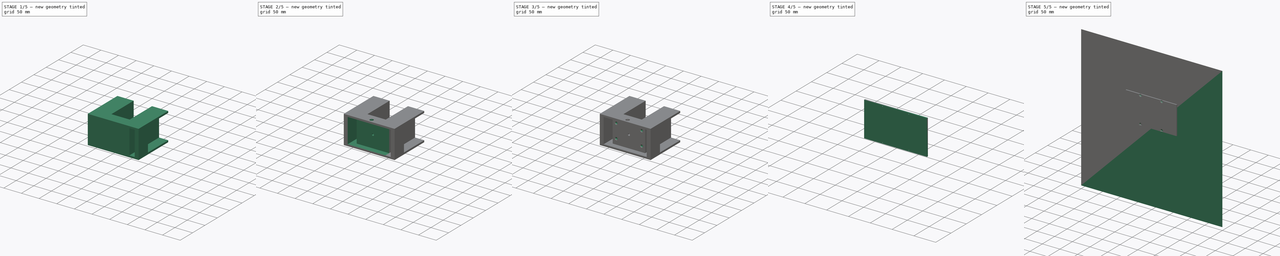
[diagram: build sequence overview — one tinted view per stage of 5, left to right]
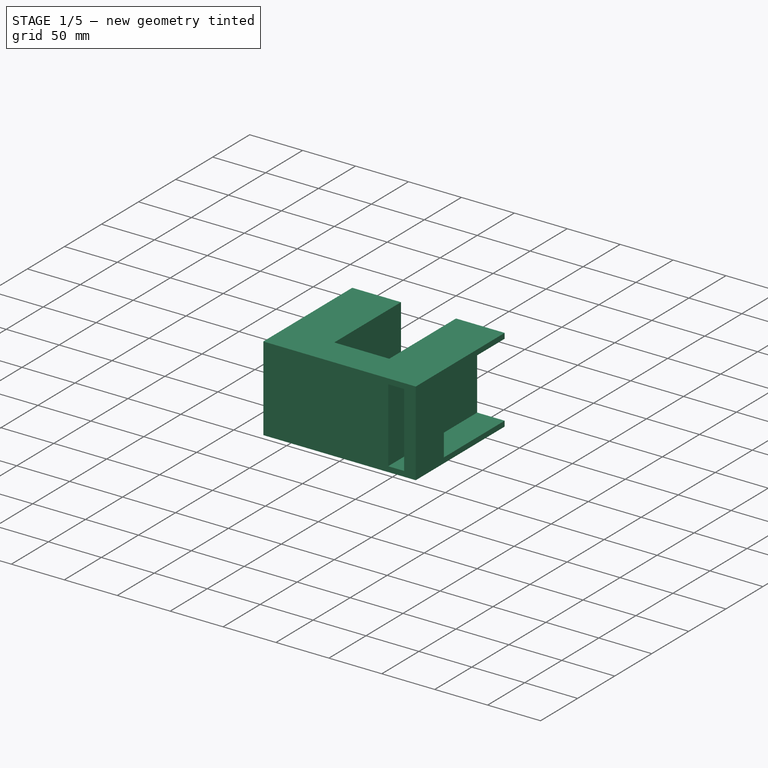
[diagram: stage 1 of 5 — iso view after this stage's code; geometry added in this stage tinted green]
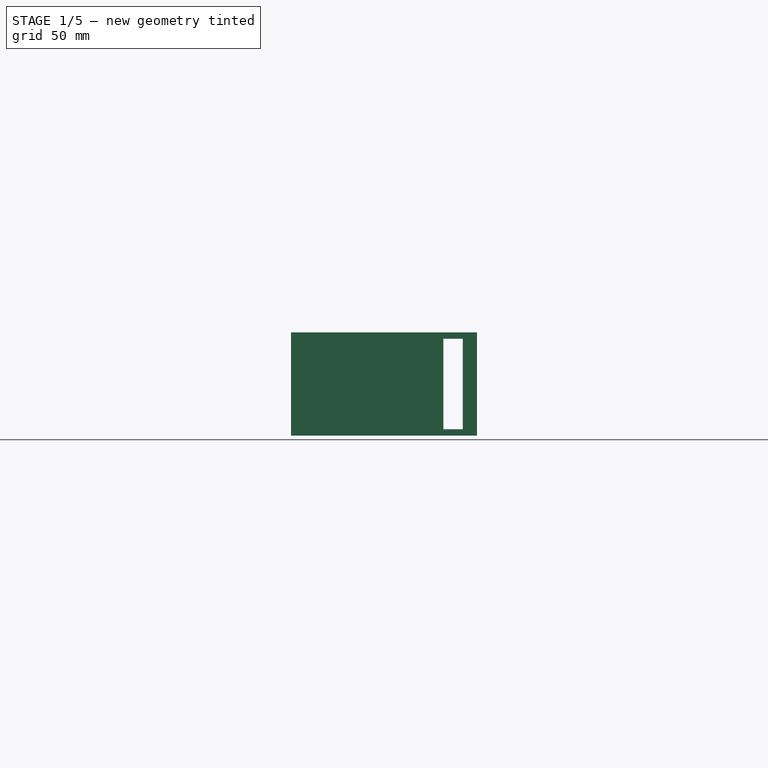
[diagram: stage 1 of 5 — front view after this stage's code; geometry added in this stage tinted green]
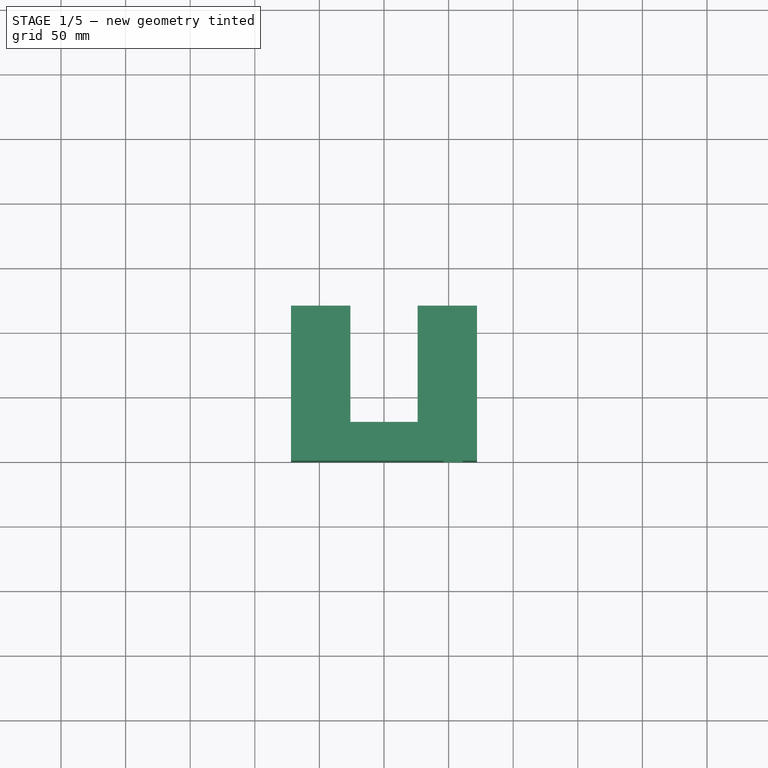
[diagram: stage 1 of 5 — top view after this stage's code; geometry added in this stage tinted green]
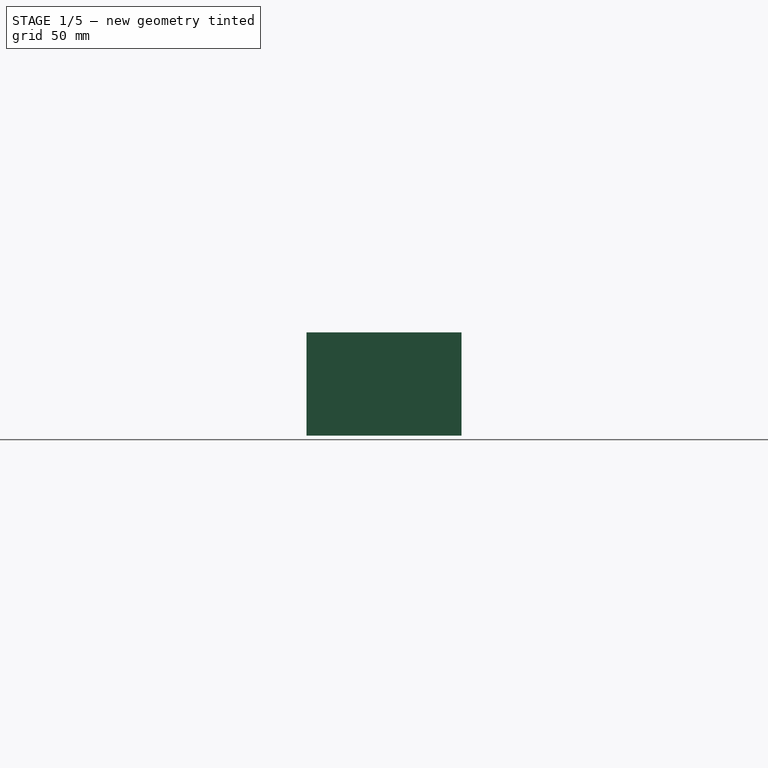
[diagram: stage 1 of 5 — right view after this stage's code; geometry added in this stage tinted green]
FCSTD DOCUMENT  (FreeCAD 0.21R33771 (Git))
Label: BikeMilmaukeeBatteryHolder
License: All rights reserved
LicenseURL: http://en.wikipedia.org/wiki/All_rights_reserved
objects: Sketcher::SketchObject×15, PartDesign::Hole×8, PartDesign::Pad×4, PartDesign::Pocket×4, PartDesign::Mirrored×4, PartDesign::Body×4, PartDesign::SubShapeBinder×2
note: 57 computed .brp shape members not serialized (recipe doc carries the construction recipe); baked Part::Feature solids carry a one-line shape summary decoded from their .brp

FEATURE [Sketcher::SketchObject] Sketch
  FullyConstrained = true
  expr: .Constraints.Ausenmaß = .Constraints.Wanddicke * 2 + .Constraints.Innenmaß
  sketch-geometry (8):
    g0: LineSegment StartX=-72 StartY=120 StartZ=0 EndX=-26 EndY=120 EndZ=0
    g1: LineSegment StartX=-72 StartY=0 StartZ=0 EndX=-72 EndY=120 EndZ=0
    g2: LineSegment StartX=72 StartY=120 StartZ=0 EndX=26 EndY=120 EndZ=0
    g3: LineSegment StartX=72 StartY=0 StartZ=0 EndX=72 EndY=120 EndZ=0
    g4: LineSegment StartX=-72 StartY=0 StartZ=0 EndX=72 EndY=0 EndZ=0
    g5: LineSegment StartX=-26 StartY=120 StartZ=0 EndX=-26 EndY=30 EndZ=0
    g6: LineSegment StartX=26 StartY=120 StartZ=0 EndX=26 EndY=30 EndZ=0
    g7: LineSegment StartX=-26 StartY=30 StartZ=0 EndX=26 EndY=30 EndZ=0
  constraints (23):
    c: Coincident(g1,g0)
    c: Horizontal(g0)
    c: Vertical(g1)
    c: Coincident(g3,g2)
    c: Horizontal(g2)
    c: Vertical(g3)
    c: Coincident(g4,g1)
    c: Coincident(g4,g3)
    c: Horizontal(g4)
    c: Coincident(g5,g0)
    c: Vertical(g5)
    c: Coincident(g6,g2)
    c: Vertical(g6)
    c: Coincident(g7,g5)
    c: Coincident(g7,g6)
    c: Horizontal(g7)
    c: DistanceX(g0,g0) = 46  'Wanddicke'
    c: DistanceX(g5,g6) = 52  'Innenmaß'
    c: DistanceX(g1,g3) = 144  'Ausenmaß'
    c: Equal(g3,g1)
    c: DistanceY(g1,g5) = 30
    c: DistanceY(g5,g0) = 90
    c: Symmetric(g1,g3,g-1)
FEATURE [PartDesign::Pad] Pad  label="UProfil"
  Direction = (0,0,1)
  Length = 80
  Length2 = 10
  Profile = -> Sketch
  ReferenceAxis = -> Sketch [N_Axis]
  Type = 0
FEATURE [Sketcher::SketchObject] Sketch001
  ExternalGeometry = -> [Pad]
  FullyConstrained = true
  MapMode = 5
  Placement = pos=(-72,0,0) rot=(0.57735,-0.57735,-0.57735;2.0944rad)
  Support = -> [Pad]
  expr: Constraints[10] = .Constraints.Wanddicke
  sketch-geometry (4):
    g0: LineSegment StartX=-120 StartY=5 StartZ=0 EndX=-38 EndY=5 EndZ=0
    g1: LineSegment StartX=-38 StartY=5 StartZ=0 EndX=-38 EndY=75 EndZ=0
    g2: LineSegment StartX=-38 StartY=75 StartZ=0 EndX=-120 EndY=75 EndZ=0
    g3: LineSegment StartX=-120 StartY=75 StartZ=0 EndX=-120 EndY=5 EndZ=0
  constraints (13):
    c: Coincident(g0,g1)
    c: Coincident(g1,g2)
    c: Coincident(g2,g3)
    c: Coincident(g3,g0)
    c: Horizontal(g0)
    c: Horizontal(g2)
    c: Vertical(g1)
    c: Vertical(g3)
    c: PointOnObject(g0,g-3)
    c: DistanceY(g-3,g0) = 5  'Wanddicke'
    c: DistanceY(g2,g-3) = 5
    c: DistanceY(g0,g2) = 70  'Innenmaß'
    c: DistanceX(g0,g0) = 82
FEATURE [PartDesign::Pocket] Pocket  label="BatteriehalterPocket"
  BaseFeature = -> Pad
  Direction = (1,0,0)
  Length = 26
  Length2 = 5
  Profile = -> Sketch001
  ReferenceAxis = -> Sketch001 [N_Axis]
  Type = 0
FEATURE [PartDesign::Mirrored] Mirrored  label="BatteriehalterPocketMirror"
  BaseFeature = -> Pocket
  MirrorPlane = -> YZ_Plane
  Originals = -> [Pocket]
FEATURE [Sketcher::SketchObject] Sketch002
  ExternalGeometry = -> [Mirrored]
  FullyConstrained = true
  MapMode = 5
  Placement = pos=(0,38,0) rot=(0,0.707107,0.707107;3.14159rad)
  Support = -> [Mirrored]
  sketch-geometry (4):
    g0: LineSegment StartX=-46 StartY=75 StartZ=0 EndX=-61 EndY=75 EndZ=0
    g1: LineSegment StartX=-61 StartY=75 StartZ=0 EndX=-61 EndY=5 EndZ=0
    g2: LineSegment StartX=-61 StartY=5 StartZ=0 EndX=-46 EndY=5 EndZ=0
    g3: LineSegment StartX=-46 StartY=5 StartZ=0 EndX=-46 EndY=75 EndZ=0
  constraints (10):
    c: Coincident(g0,g1)
    c: Coincident(g1,g2)
    c: Coincident(g2,g3)
    c: Coincident(g3,g0)
    c: Horizontal(g0)
    c: Horizontal(g2)
    c: Vertical(g1)
    c: Coincident(g0,g-3)
    c: Coincident(g-3,g2)
    c: DistanceX(g0,g0) = 15
FEATURE [PartDesign::Pocket] Pocket001  label="BatteriehalterkabelPocket"
  BaseFeature = -> Mirrored
  Direction = (0,-1,2e-16)
  Length = 9
  Length2 = 5
  Profile = -> Sketch002
  ReferenceAxis = -> Sketch002 [N_Axis]
  Type = 1
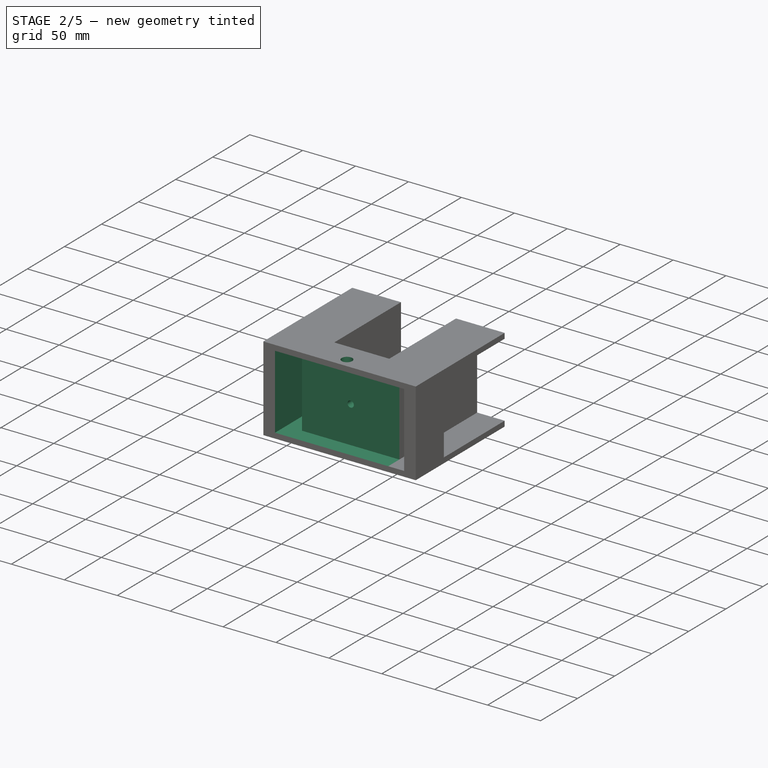
[diagram: stage 2 of 5 — iso view after this stage's code; geometry added in this stage tinted green]
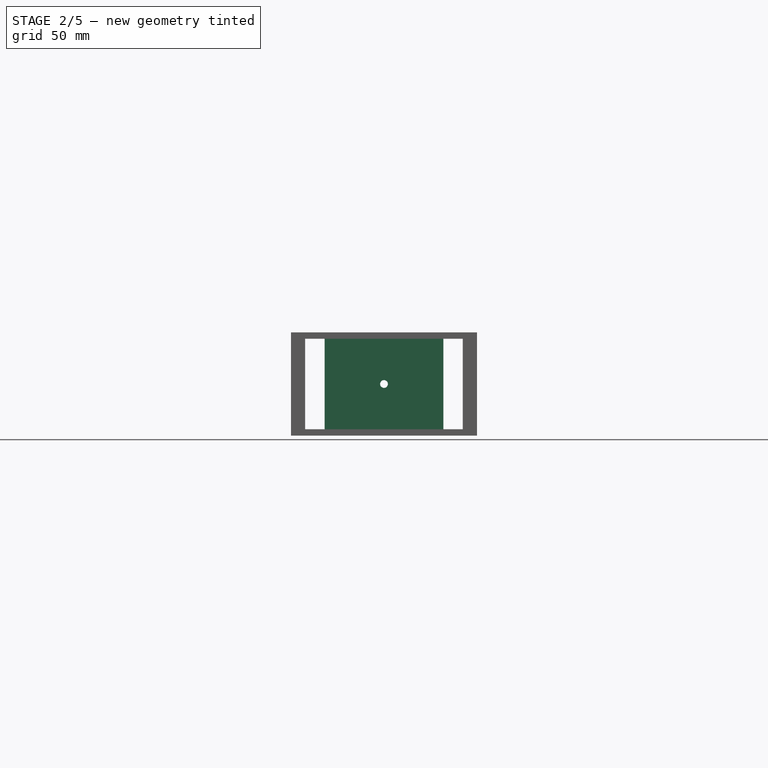
[diagram: stage 2 of 5 — front view after this stage's code; geometry added in this stage tinted green]
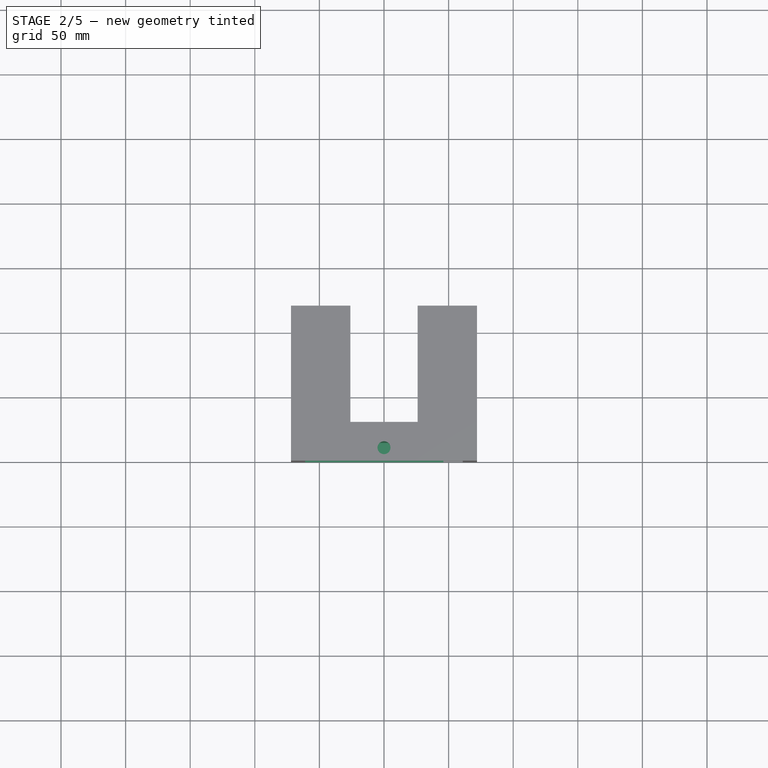
[diagram: stage 2 of 5 — top view after this stage's code; geometry added in this stage tinted green]
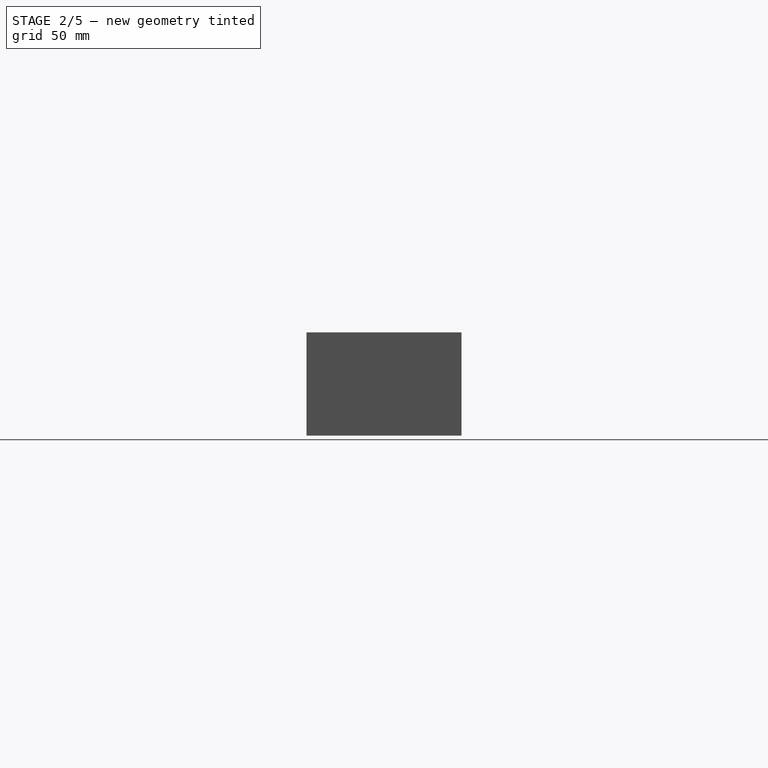
[diagram: stage 2 of 5 — right view after this stage's code; geometry added in this stage tinted green]
FEATURE [PartDesign::Mirrored] Mirrored001  label="BatteriehalterkabelPocketMirror"
  BaseFeature = -> Pocket001
  MirrorPlane = -> Sketch002 [V_Axis]
  Originals = -> [Pocket001]
FEATURE [Sketcher::SketchObject] Sketch003
  ExternalGeometry = -> [Mirrored001]
  FullyConstrained = true
  MapMode = 5
  Placement = pos=(0,0,0) rot=(1,0,0;1.5708rad)
  Support = -> [Mirrored001]
  sketch-geometry (4):
    g0: LineSegment StartX=-46 StartY=75 StartZ=0 EndX=46 EndY=75 EndZ=0
    g1: LineSegment StartX=46 StartY=75 StartZ=0 EndX=46 EndY=5 EndZ=0
    g2: LineSegment StartX=46 StartY=5 StartZ=0 EndX=-46 EndY=5 EndZ=0
    g3: LineSegment StartX=-46 StartY=5 StartZ=0 EndX=-46 EndY=75 EndZ=0
  constraints (10):
    c: Coincident(g0,g1)
    c: Coincident(g1,g2)
    c: Coincident(g2,g3)
    c: Coincident(g3,g0)
    c: Horizontal(g0)
    c: Horizontal(g2)
    c: Vertical(g1)
    c: Vertical(g3)
    c: Coincident(g0,g-3)
    c: Coincident(g1,g-4)
FEATURE [PartDesign::Pocket] Pocket002  label="Bodenkabelkammer"
  BaseFeature = -> Mirrored001
  Direction = (0,1,-2e-16)
  Length = 15
  Length2 = 5
  Profile = -> Sketch003
  ReferenceAxis = -> Sketch003 [N_Axis]
  Type = 0
FEATURE [Sketcher::SketchObject] Sketch004
  ExternalGeometry = -> [Pocket002]
  FullyConstrained = true
  MapMode = 5
  Placement = pos=(0,30,0) rot=(0,0.707107,0.707107;3.14159rad)
  Support = -> [Pocket002]
  sketch-geometry (2):
    g0: Circle CenterX=0 CenterY=40 CenterZ=0 NormalX=0 NormalY=0 NormalZ=1 AngleXU=0 Radius=5
    g1: LineSegment StartX=-26 StartY=0 StartZ=0 EndX=26 EndY=80 EndZ=0
  constraints (5):
    c: PointOnObject(g0,g-2)
    c: Coincident(g1,g-3)
    c: Coincident(g1,g-4)
    c: Diameter(g0) = 10
    c: PointOnObject(g0,g1)
FEATURE [PartDesign::Hole] Hole  label="Rahmenhalter"
  BaseFeature = -> Pocket002
  CustomThreadClearance = 0
  Depth = 411.684
  DepthType = 1
  Diameter = 6
  DrillForDepth = false
  DrillPoint = 1
  DrillPointAngle = 118
  HoleCutCountersinkAngle = 90
  HoleCutCustomValues = false
  HoleCutDepth = 0
  HoleCutDiameter = 6.1
  HoleCutType = 0
  ModelThread = false
  Profile = -> Sketch004
  Tapered = false
  TaperedAngle = 90
  ThreadClass = 0
  ThreadDepth = 411.684
  ThreadDepthType = 0
  ThreadDirection = 0
  ThreadFit = 0
  ThreadSize = 0
  ThreadType = 0
  Threaded = false
  UseCustomThreadClearance = false
FEATURE [Sketcher::SketchObject] Sketch005
  ExternalGeometry = -> [Hole]
  FullyConstrained = true
  MapMode = 5
  Placement = pos=(0,0,80) rot=(0,0,1;0rad)
  Support = -> [Hole]
  expr: Constraints[2] = .Constraints.Kabelausgang / 2 + 5 mm
  sketch-geometry (1):
    g0: Circle CenterX=0 CenterY=10 CenterZ=0 NormalX=0 NormalY=0 NormalZ=1 AngleXU=0 Radius=5
  constraints (3):
    c: PointOnObject(g0,g-2)
    c: Diameter(g0) = 10  'Kabelausgang'
    c: DistanceY(g-1,g0) = 10
FEATURE [PartDesign::Pocket] Pocket003  label="Kabelausgang"
  BaseFeature = -> Hole
  Direction = (0,0,-1)
  Length = 0
  Length2 = 5
  Profile = -> Sketch005
  ReferenceAxis = -> Sketch005 [N_Axis]
  Type = 2
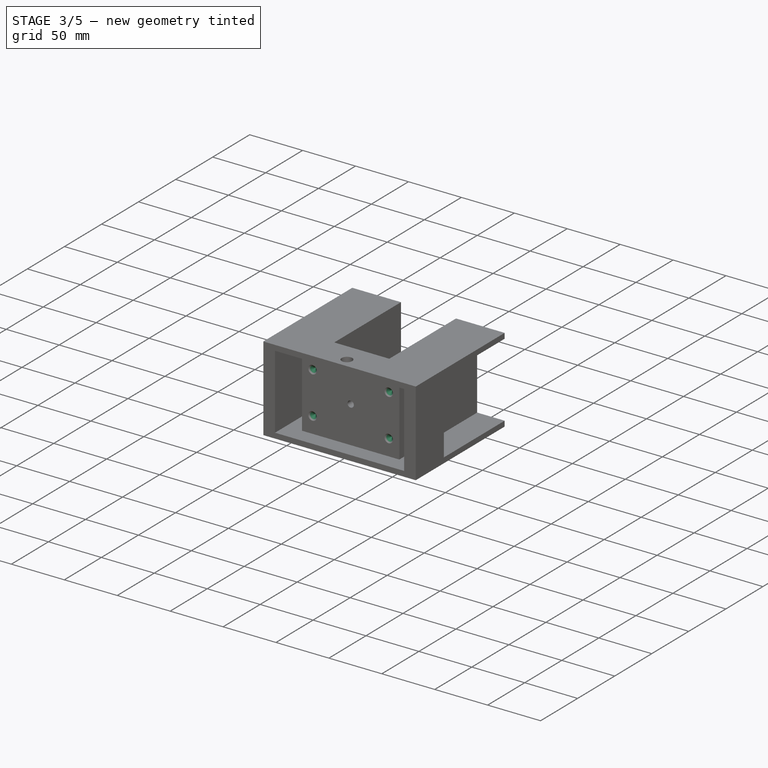
[diagram: stage 3 of 5 — iso view after this stage's code; geometry added in this stage tinted green]
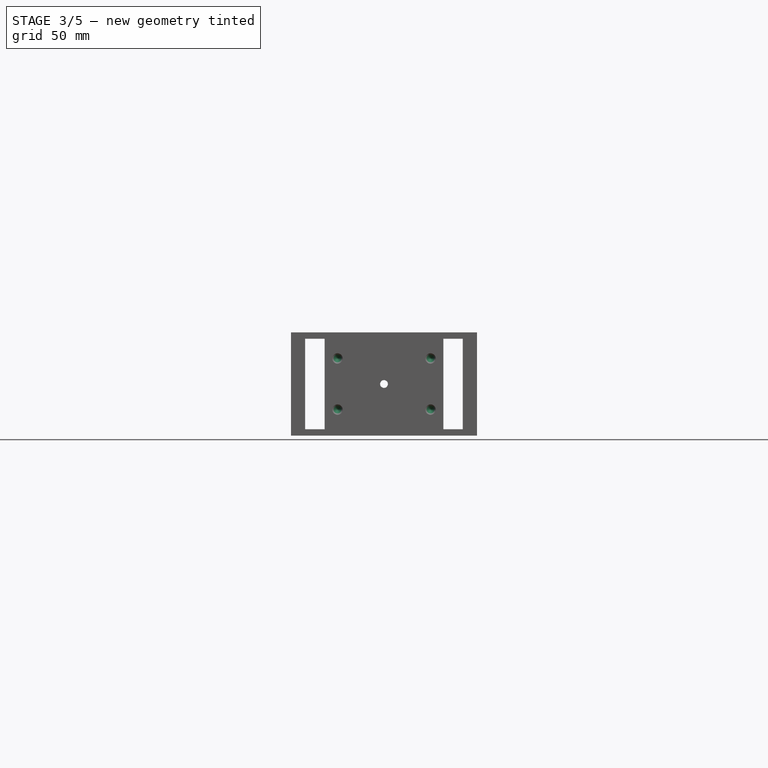
[diagram: stage 3 of 5 — front view after this stage's code; geometry added in this stage tinted green]
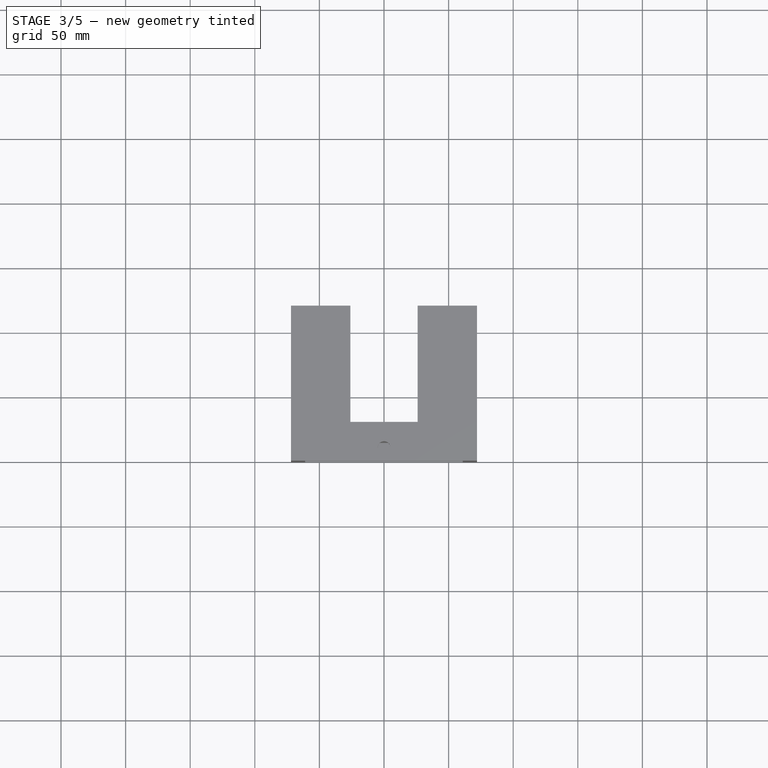
[diagram: stage 3 of 5 — top view after this stage's code; geometry added in this stage tinted green]
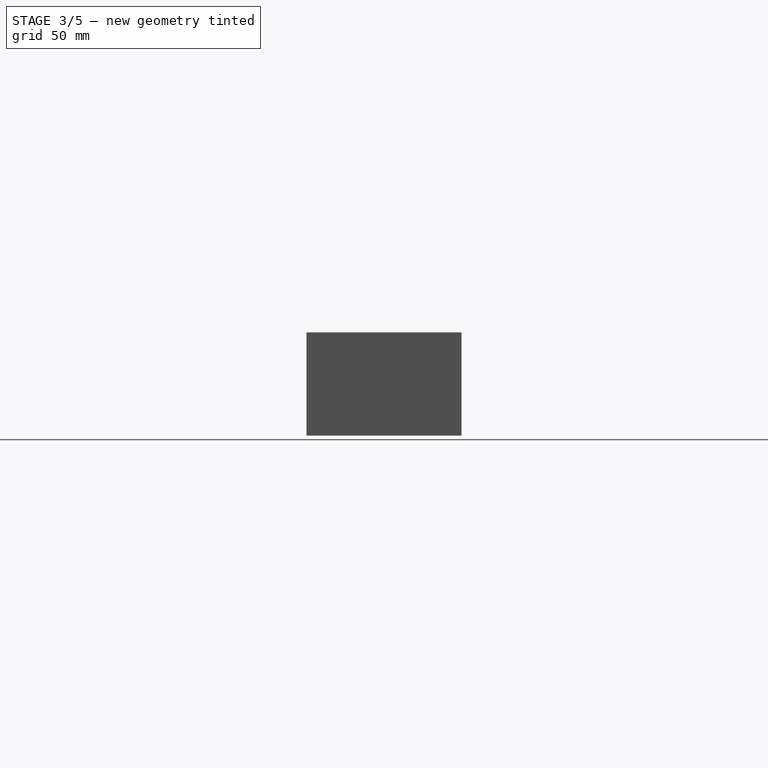
[diagram: stage 3 of 5 — right view after this stage's code; geometry added in this stage tinted green]
FEATURE [Sketcher::SketchObject] Sketch006
  ExternalGeometry = -> [Pocket003]
  FullyConstrained = true
  MapMode = 5
  Placement = pos=(0,15,-3.3e-15) rot=(1,0,0;1.5708rad)
  Support = -> [Pocket003]
  sketch-geometry (8):
    g0: Circle CenterX=-36 CenterY=20.2174 CenterZ=0 NormalX=0 NormalY=0 NormalZ=1 AngleXU=0 Radius=1
    g1: Circle CenterX=-36 CenterY=59.7826 CenterZ=0 NormalX=0 NormalY=0 NormalZ=1 AngleXU=0 Radius=1
    g2: Circle CenterX=36 CenterY=59.7826 CenterZ=0 NormalX=0 NormalY=0 NormalZ=1 AngleXU=0 Radius=1
    g3: Circle CenterX=36 CenterY=20.2174 CenterZ=0 NormalX=0 NormalY=0 NormalZ=1 AngleXU=0 Radius=1
    g4: GeomPoint X=0 Y=75 Z=0
    g5: GeomPoint X=0 Y=5 Z=0
    g6: LineSegment StartX=-46 StartY=5 StartZ=0 EndX=0 EndY=75 EndZ=0
    g7: LineSegment StartX=-46 StartY=75 StartZ=0 EndX=0 EndY=5 EndZ=0
  constraints (18):
    c: Symmetric(g3,g0,g-2)
    c: Equal(g1,g0)
    c: Equal(g0,g3)
    c: Equal(g3,g2)
    c: Symmetric(g1,g2,g-2)
    c: Diameter(g0) = 2
    c: PointOnObject(g4,g-4)
    c: PointOnObject(g5,g-3)
    c: PointOnObject(g5,g-2)
    c: PointOnObject(g4,g-2)
    c: Coincident(g6,g-3)
    c: Coincident(g6,g4)
    c: Coincident(g7,g-4)
    c: Coincident(g7,g5)
    c: Tangent(g0,g6) = -1.5708
    c: DistanceX(g0,g1) = 0
    c: Tangent(g1,g7) = -1.5708
    c: DistanceX(g6,g0) = 10
FEATURE [PartDesign::Hole] Hole001  label="SchraubenInnen"
  BaseFeature = -> Pocket003
  CustomThreadClearance = 0
  Depth = 25
  DepthType = 0
  Diameter = 2
  DrillForDepth = false
  DrillPoint = 1
  DrillPointAngle = 118
  HoleCutCountersinkAngle = 90
  HoleCutCustomValues = false
  HoleCutDepth = 0
  HoleCutDiameter = 8
  HoleCutType = 2
  ModelThread = false
  Profile = -> Sketch006
  Tapered = false
  TaperedAngle = 90
  ThreadClass = 0
  ThreadDepth = 25
  ThreadDepthType = 0
  ThreadDirection = 0
  ThreadFit = 0
  ThreadSize = 0
  ThreadType = 0
  Threaded = false
  UseCustomThreadClearance = false
FEATURE [Sketcher::SketchObject] Sketch007
  ExternalGeometry = -> [Hole001]
  FullyConstrained = true
  MapMode = 5
  Placement = pos=(0,38,0) rot=(0,0.707107,0.707107;3.14159rad)
  Support = -> [Hole001]
  sketch-geometry (8):
    g0: Circle CenterX=-66.5 CenterY=57.5 CenterZ=0 NormalX=0 NormalY=0 NormalZ=1 AngleXU=0 Radius=1.5
    g1: GeomPoint X=-72 Y=40 Z=0
    g2: GeomPoint X=-61 Y=40 Z=0
    g3: LineSegment StartX=-72 StartY=75 StartZ=0 EndX=-61 EndY=40 EndZ=0
    g4: LineSegment StartX=-61 StartY=40 StartZ=0 EndX=-72 EndY=5 EndZ=0
    g5: LineSegment StartX=-61 StartY=5 StartZ=0 EndX=-72 EndY=40 EndZ=0
    g6: LineSegment StartX=-72 StartY=40 StartZ=0 EndX=-61 EndY=75 EndZ=0
    g7: Circle CenterX=-66.5 CenterY=22.5 CenterZ=0 NormalX=0 NormalY=0 NormalZ=1 AngleXU=0 Radius=1.5
  constraints (17):
    c: Symmetric(g-4,g-4,g1)
    c: DistanceY(g2,g1) = 0
    c: DistanceX(g2,g-3) = 0
    c: Coincident(g3,g-4)
    c: Coincident(g3,g2)
    c: Coincident(g4,g3)
    c: Coincident(g4,g-5)
    c: Coincident(g5,g-5)
    c: Coincident(g5,g1)
    c: Coincident(g6,g5)
    c: Coincident(g6,g-3)
    c: PointOnObject(g0,g3)
    c: PointOnObject(g0,g6)
    c: PointOnObject(g7,g5)
    c: PointOnObject(g7,g4)
    c: Equal(g0,g7)
    c: Diameter(g7) = 3
FEATURE [PartDesign::Hole] Hole002  label="Schaubenaußen"
  BaseFeature = -> Hole001
  CustomThreadClearance = 0
  Depth = 25
  DepthType = 0
  Diameter = 2
  DrillForDepth = false
  DrillPoint = 1
  DrillPointAngle = 118
  HoleCutCountersinkAngle = 90
  HoleCutCustomValues = false
  HoleCutDepth = 0
  HoleCutDiameter = 8
  HoleCutType = 2
  ModelThread = false
  Profile = -> Sketch007
  Tapered = false
  TaperedAngle = 90
  ThreadClass = 0
  ThreadDepth = 25
  ThreadDepthType = 0
  ThreadDirection = 0
  ThreadFit = 0
  ThreadSize = 0
  ThreadType = 0
  Threaded = false
  UseCustomThreadClearance = false
FEATURE [PartDesign::Mirrored] Mirrored002  label="SchraubenaußenMirror"
  BaseFeature = -> Hole002
  MirrorPlane = -> Sketch007 [V_Axis]
  Originals = -> [Hole002]
FEATURE [PartDesign::Body] Body001  label="Splitebene"
  Group = -> [Sketch008,Pad001]
  Origin = -> Origin001
  Placement = pos=(0,30,0) rot=(0,0,1;0rad)
  Tip = -> Pad001
FEATURE [Sketcher::SketchObject] Sketch009
  ExternalGeometry = -> [Mirrored002]
  FullyConstrained = true
  MapMode = 45
  Placement = pos=(1.96e-14,120,40) rot=(-0.57735,-0.57735,-0.57735;2.0944rad)
  Support = -> [Mirrored002]
  sketch-geometry (10):
    g0: Circle CenterX=-18.6667 CenterY=-36.6667 CenterZ=0 NormalX=0 NormalY=0 NormalZ=1 AngleXU=0 Radius=1.5
    g1: Circle CenterX=18.6667 CenterY=-36.6667 CenterZ=0 NormalX=0 NormalY=0 NormalZ=1 AngleXU=0 Radius=1.5
    g2: Circle CenterX=-18.6667 CenterY=36.6667 CenterZ=0 NormalX=0 NormalY=0 NormalZ=1 AngleXU=0 Radius=1.5
    g3: Circle CenterX=18.6667 CenterY=36.6667 CenterZ=0 NormalX=0 NormalY=0 NormalZ=1 AngleXU=0 Radius=1.5
    g4: GeomPoint X=0 Y=-46 Z=0
    g5: GeomPoint X=0 Y=-26 Z=0
    g6: LineSegment StartX=-35 StartY=-46 StartZ=0 EndX=0 EndY=-26 EndZ=0
    g7: LineSegment StartX=0 StartY=-26 StartZ=0 EndX=35 EndY=-46 EndZ=0
    g8: LineSegment StartX=40 StartY=-26 StartZ=0 EndX=0 EndY=-46 EndZ=0
    g9: LineSegment StartX=0 StartY=-46 StartZ=0 EndX=-40 EndY=-26 EndZ=0
  constraints (21):
    c: Symmetric(g0,g1,g-2)
    c: Equal(g0,g1)
    c: Symmetric(g2,g0,g-1)
    c: Symmetric(g1,g3,g-1)
    c: Equal(g0,g2)
    c: Equal(g2,g3)
    c: Diameter(g0) = 3
    c: PointOnObject(g4,g-3)
    c: PointOnObject(g4,g-2)
    c: PointOnObject(g5,g-4)
    c: PointOnObject(g5,g-2)
    c: Coincident(g6,g-3)
    c: Coincident(g6,g5)
    c: Coincident(g7,g-3)
    c: Coincident(g8,g-4)
    c: Coincident(g8,g4)
    c: Coincident(g9,g4)
    c: Coincident(g9,g-4)
    c: PointOnObject(g0,g6)
    c: PointOnObject(g0,g9)
    c: Coincident(g7,g5)
FEATURE [PartDesign::Hole] Hole003  label="Deckellöcher"
  BaseFeature = -> Mirrored002
  CustomThreadClearance = 0
  Depth = 25
  DepthType = 0
  Diameter = 2
  DrillForDepth = false
  DrillPoint = 1
  DrillPointAngle = 118
  HoleCutCountersinkAngle = 90
  HoleCutCustomValues = false
  HoleCutDepth = 0
  HoleCutDiameter = 6.1
  HoleCutType = 0
  ModelThread = false
  Profile = -> Sketch009
  Tapered = false
  TaperedAngle = 90
  ThreadClass = 0
  ThreadDepth = 25
  ThreadDepthType = 0
  ThreadDirection = 0
  ThreadFit = 0
  ThreadSize = 0
  ThreadType = 0
  Threaded = false
  UseCustomThreadClearance = false
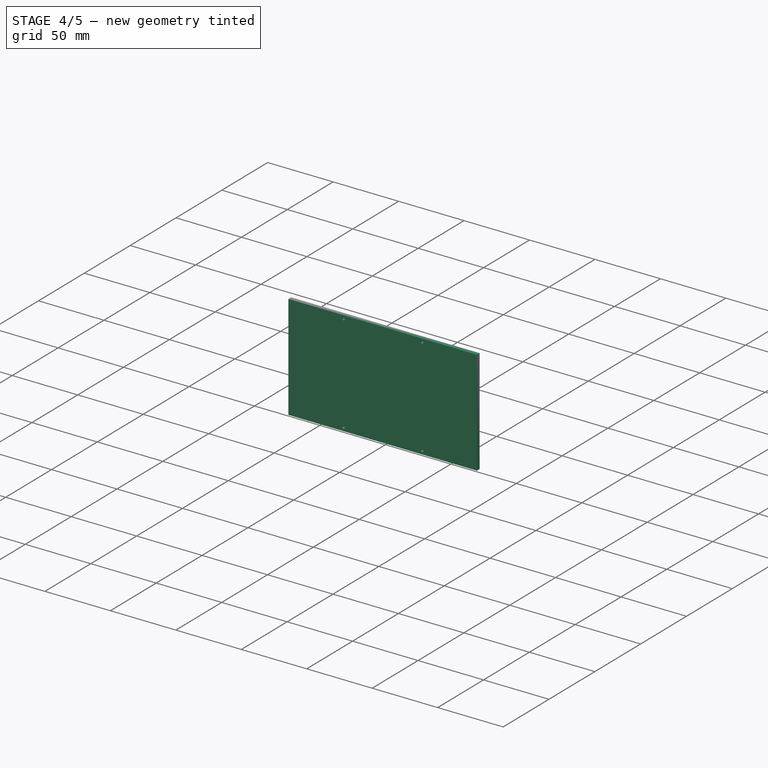
[diagram: stage 4 of 5 — iso view after this stage's code; geometry added in this stage tinted green]
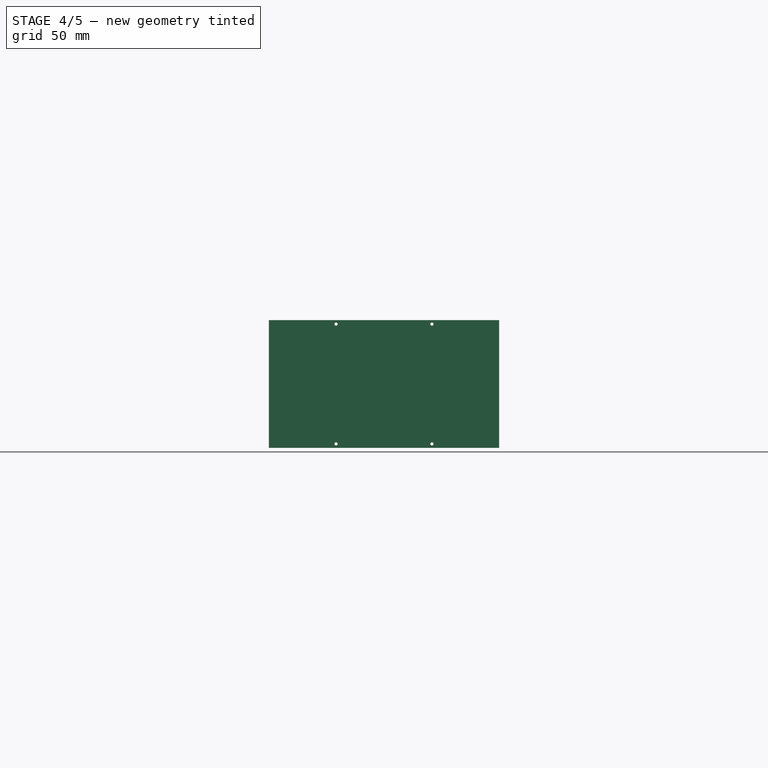
[diagram: stage 4 of 5 — front view after this stage's code; geometry added in this stage tinted green]
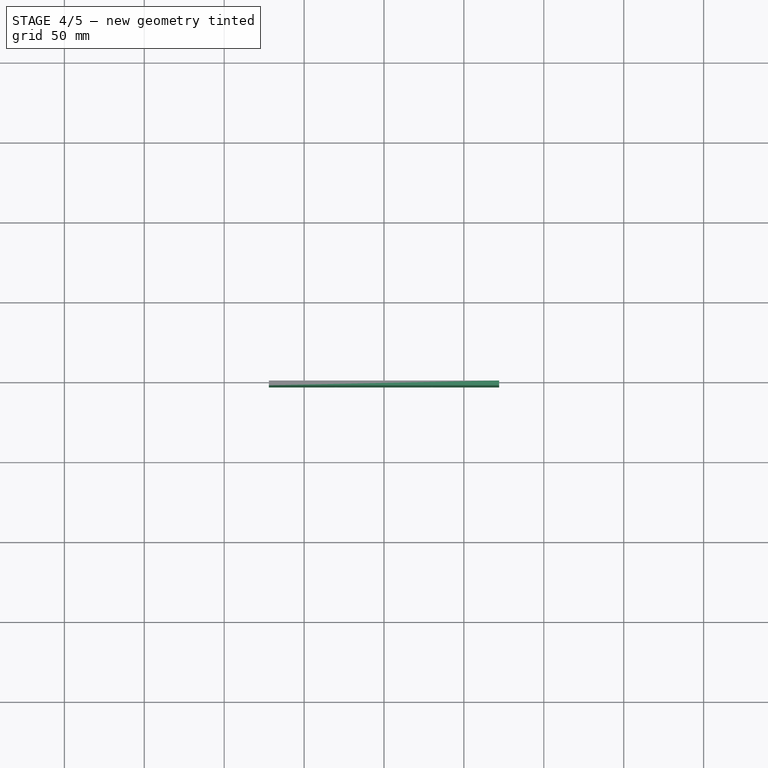
[diagram: stage 4 of 5 — top view after this stage's code; geometry added in this stage tinted green]
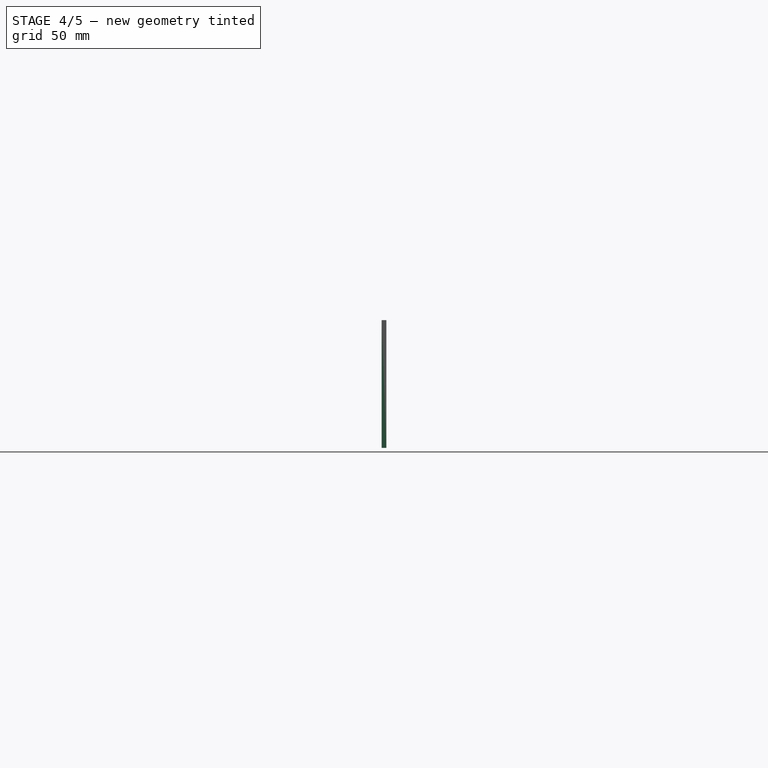
[diagram: stage 4 of 5 — right view after this stage's code; geometry added in this stage tinted green]
FEATURE [PartDesign::Body] Body002  label="Deckel"
  Group = -> [Binder,Sketch010,Pad002,Sketch012,Hole004]
  Origin = -> Origin002
  Placement = pos=(0,120.5,0) rot=(0,0,1;0rad)
  Tip = -> Hole004
FEATURE [Sketcher::SketchObject] Sketch013
  ExternalGeometry = -> [Hole003]
  FullyConstrained = true
  MapMode = 5
  Placement = pos=(-46,0,0) rot=(0.57735,-0.57735,-0.57735;2.0944rad)
  Support = -> [Hole003]
  expr: Constraints[6] = .Constraints.Loecherabstand / 2
  sketch-geometry (6):
    g0: GeomPoint X=-120 Y=40 Z=0
    g1: LineSegment StartX=-99 StartY=52.5 StartZ=0 EndX=-99 EndY=27.5 EndZ=0
    g2: GeomPoint X=-74 Y=40 Z=0
    g3: Circle CenterX=-99 CenterY=52.5 CenterZ=0 NormalX=0 NormalY=0 NormalZ=1 AngleXU=0 Radius=1.5
    g4: Circle CenterX=-99 CenterY=27.5 CenterZ=0 NormalX=0 NormalY=0 NormalZ=1 AngleXU=0 Radius=1.5
    g5: Circle CenterX=-74 CenterY=40 CenterZ=0 NormalX=0 NormalY=0 NormalZ=1 AngleXU=0 Radius=1.5
  constraints (13):
    c: Symmetric(g-3,g-4,g0)
    c: Vertical(g1)
    c: DistanceX(g-3,g1) = 21
    c: DistanceY(g1,g1) = 25  'Loecherabstand'
    c: DistanceX(g1,g2) = 25
    c: DistanceY(g0,g2) = 0
    c: DistanceY(g1,g2) = 12.5
    c: Coincident(g3,g1)
    c: Coincident(g4,g1)
    c: Coincident(g5,g2)
    c: Diameter(g5) = 3
    c: Equal(g5,g4)
    c: Equal(g4,g3)
FEATURE [PartDesign::Hole] Hole005  label="Mountschraubenloecher"
  BaseFeature = -> Hole003
  CustomThreadClearance = 0
  Depth = 25
  DepthType = 0
  Diameter = 2
  DrillForDepth = false
  DrillPoint = 1
  DrillPointAngle = 118
  HoleCutCountersinkAngle = 90
  HoleCutCustomValues = false
  HoleCutDepth = 0
  HoleCutDiameter = 6.1
  HoleCutType = 0
  ModelThread = false
  Profile = -> Sketch013
  Tapered = false
  TaperedAngle = 90
  ThreadClass = 0
  ThreadDepth = 25
  ThreadDepthType = 0
  ThreadDirection = 0
  ThreadFit = 0
  ThreadSize = 0
  ThreadType = 0
  Threaded = false
  UseCustomThreadClearance = false
FEATURE [PartDesign::Mirrored] Mirrored003  label="MountschraubenloecherMirror"
  BaseFeature = -> Hole005
  MirrorPlane = -> YZ_Plane
  Originals = -> [Hole005]
FEATURE [Sketcher::SketchObject] Sketch014
  ExternalGeometry = -> [Mirrored003]
  FullyConstrained = true
  MapMode = 5
  Placement = pos=(0,0,0) rot=(1,0,0;1.5708rad)
  Support = -> [Mirrored003]
  sketch-geometry (13):
    g0: LineSegment StartX=-60 StartY=5 StartZ=0 EndX=-60 EndY=0 EndZ=0
    g1: LineSegment StartX=-60 StartY=0 StartZ=0 EndX=0 EndY=5 EndZ=0
    g2: LineSegment StartX=-60 StartY=5 StartZ=0 EndX=0 EndY=0 EndZ=0
    g3: Circle CenterX=-30 CenterY=2.5 CenterZ=0 NormalX=0 NormalY=0 NormalZ=1 AngleXU=0 Radius=1.5
    g4: LineSegment StartX=-60 StartY=75 StartZ=0 EndX=-60 EndY=80 EndZ=0
    g5: GeomPoint X=0 Y=75 Z=0
    g6: GeomPoint X=0 Y=80 Z=0
    g7: LineSegment StartX=-60 StartY=75 StartZ=0 EndX=0 EndY=80 EndZ=0
    g8: LineSegment StartX=0 StartY=75 StartZ=0 EndX=-60 EndY=80 EndZ=0
    g9: Circle CenterX=-30 CenterY=77.5 CenterZ=0 NormalX=0 NormalY=0 NormalZ=1 AngleXU=0 Radius=1.5
    g10: Circle CenterX=30 CenterY=2.5 CenterZ=0 NormalX=0 NormalY=0 NormalZ=1 AngleXU=0 Radius=1.5
    g11: Circle CenterX=30 CenterY=77.5 CenterZ=0 NormalX=0 NormalY=0 NormalZ=1 AngleXU=0 Radius=1.5
    g12: LineSegment StartX=-60 StartY=5 StartZ=0 EndX=0 EndY=5 EndZ=0
  constraints (33):
    c: PointOnObject(g0,g-4)
    c: Vertical(g0)
    c: DistanceX(g0,g-1) = 60
    c: Coincident(g1,g0)
    c: PointOnObject(g1,g-5)
    c: PointOnObject(g1,g-2)
    c: Coincident(g2,g0)
    c: Coincident(g2,g-1)
    c: PointOnObject(g3,g2)
    c: PointOnObject(g3,g1)
    c: Diameter(g3) = 3
    c: PointOnObject(g4,g-6)
    c: PointOnObject(g4,g-3)
    c: Vertical(g4)
    c: PointOnObject(g5,g-6)
    c: PointOnObject(g6,g-3)
    c: PointOnObject(g6,g-2)
    c: PointOnObject(g5,g-2)
    c: DistanceX(g0,g4) = 0
    c: Coincident(g7,g4)
    c: Coincident(g7,g6)
    c: Coincident(g8,g5)
    c: Coincident(g8,g4)
    c: PointOnObject(g9,g8)
    c: PointOnObject(g9,g7)
    c: Equal(g3,g9)
    c: Symmetric(g9,g11,g-2)
    c: Symmetric(g3,g10,g-2)
    c: Equal(g3,g10)
    c: Equal(g10,g11)
    c: Coincident(g12,g0)
    c: Coincident(g12,g1)
    c: Horizontal(g12)
FEATURE [PartDesign::Hole] Hole006  label="Bodenplattenloecher"
  BaseFeature = -> Mirrored003
  CustomThreadClearance = 0
  Depth = 25
  DepthType = 0
  Diameter = 2
  DrillForDepth = false
  DrillPoint = 1
  DrillPointAngle = 118
  HoleCutCountersinkAngle = 90
  HoleCutCustomValues = false
  HoleCutDepth = 0
  HoleCutDiameter = 6.1
  HoleCutType = 0
  ModelThread = false
  Profile = -> Sketch014
  Tapered = false
  TaperedAngle = 90
  ThreadClass = 0
  ThreadDepth = 25
  ThreadDepthType = 0
  ThreadDirection = 0
  ThreadFit = 0
  ThreadSize = 0
  ThreadType = 0
  Threaded = false
  UseCustomThreadClearance = false
FEATURE [PartDesign::Body] Body  label="Ubody"
  Group = -> [Sketch,Pad,Sketch001,Pocket,Mirrored,Sketch002,Pocket001,Mirrored001,Sketch003,Pocket002,Sketch004,Hole,Sketch005,Pocket003,Sketch006,Hole001,Sketch007,Hole002,Mirrored002,Sketch009,Hole003,Sketch013,Hole005,Mirrored003,Sketch014,Hole006]
  Origin = -> Origin
  Tip = -> Hole006
FEATURE [PartDesign::SubShapeBinder] Binder001
  BindCopyOnChange = 0
  BindMode = 0
  ClaimChildren = false
  Context = -> Body003 [Binder001.]
  Fuse = false
  MakeFace = true
  OffsetFill = false
  OffsetIntersection = false
  OffsetJoinType = 0
  OffsetOpenResult = false
  PartialLoad = false
  Relative = true
  Support = -> [Body[Hole006.Face1]]
  _Version = 2
FEATURE [Sketcher::SketchObject] Sketch015
  ExternalGeometry = -> [Binder001]
  FullyConstrained = true
  MapMode = 5
  Placement = pos=(0,0,0) rot=(1,0,0;1.5708rad)
  Support = -> [Binder001]
  sketch-geometry (8):
    g0: LineSegment StartX=-72 StartY=80 StartZ=0 EndX=72 EndY=80 EndZ=0
    g1: LineSegment StartX=72 StartY=80 StartZ=0 EndX=72 EndY=0 EndZ=0
    g2: LineSegment StartX=72 StartY=0 StartZ=0 EndX=-72 EndY=0 EndZ=0
    g3: LineSegment StartX=-72 StartY=0 StartZ=0 EndX=-72 EndY=80 EndZ=0
    g4: Circle CenterX=-30 CenterY=2.5 CenterZ=0 NormalX=0 NormalY=0 NormalZ=1 AngleXU=0 Radius=1
    g5: Circle CenterX=30 CenterY=2.5 CenterZ=0 NormalX=0 NormalY=0 NormalZ=1 AngleXU=0 Radius=1
    g6: Circle CenterX=30 CenterY=77.5 CenterZ=0 NormalX=0 NormalY=0 NormalZ=1 AngleXU=0 Radius=1
    g7: Circle CenterX=-30 CenterY=77.5 CenterZ=0 NormalX=0 NormalY=0 NormalZ=1 AngleXU=0 Radius=1
  constraints (18):
    c: Coincident(g0,g1)
    c: Coincident(g1,g2)
    c: Coincident(g2,g3)
    c: Coincident(g3,g0)
    c: Horizontal(g0)
    c: Horizontal(g2)
    c: Vertical(g1)
    c: Vertical(g3)
    c: Coincident(g0,g-3)
    c: Coincident(g1,g-4)
    c: Coincident(g4,g-8)
    c: Coincident(g5,g-5)
    c: Coincident(g6,g-6)
    c: Coincident(g7,g-7)
    c: Equal(g4,g-8)
    c: Equal(g5,g-5)
    c: Equal(g6,g-6)
    c: Equal(g7,g-7)
FEATURE [PartDesign::Pad] Pad003  label="Bodenplatte"
  Direction = (0,-1,2e-16)
  Length = 3
  Length2 = 10
  Profile = -> Sketch015
  ReferenceAxis = -> Sketch015 [N_Axis]
  Type = 0
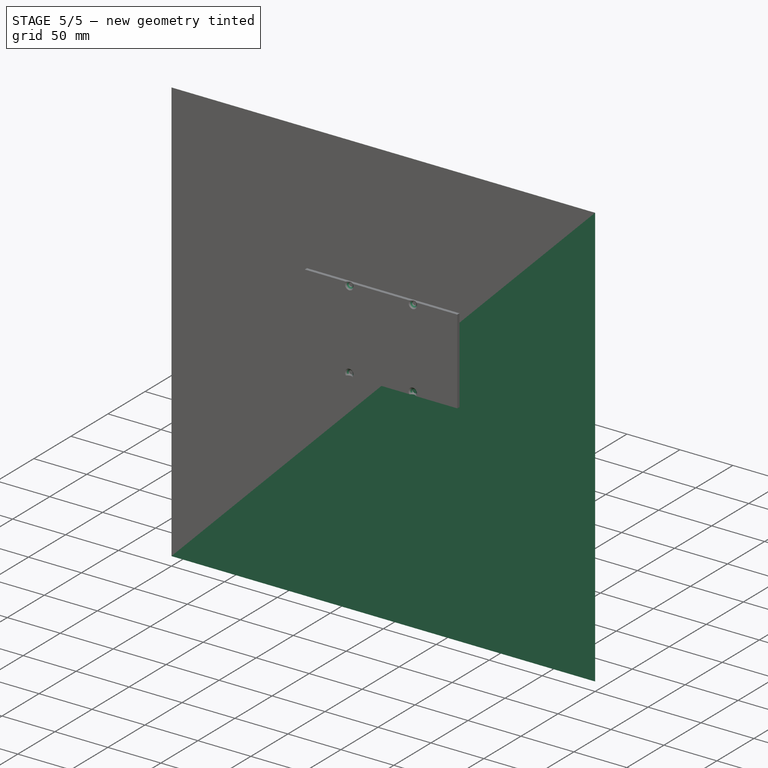
[diagram: stage 5 of 5 — iso view after this stage's code; geometry added in this stage tinted green]
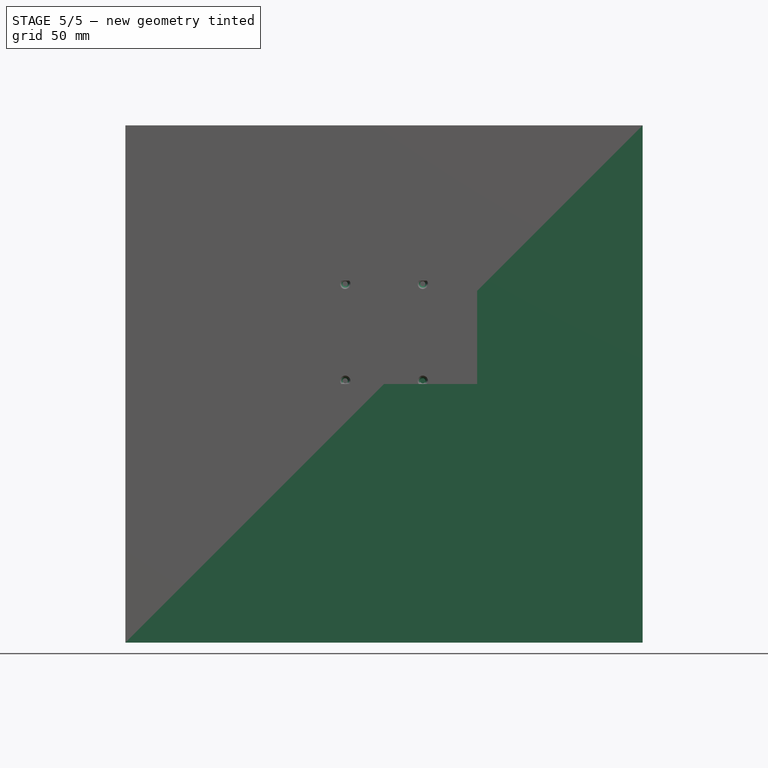
[diagram: stage 5 of 5 — front view after this stage's code; geometry added in this stage tinted green]
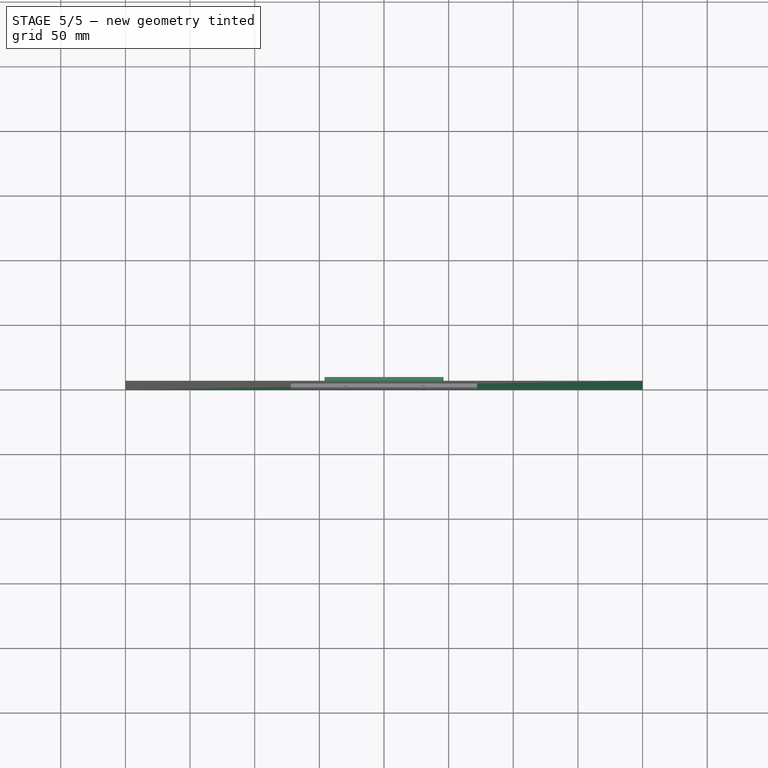
[diagram: stage 5 of 5 — top view after this stage's code; geometry added in this stage tinted green]
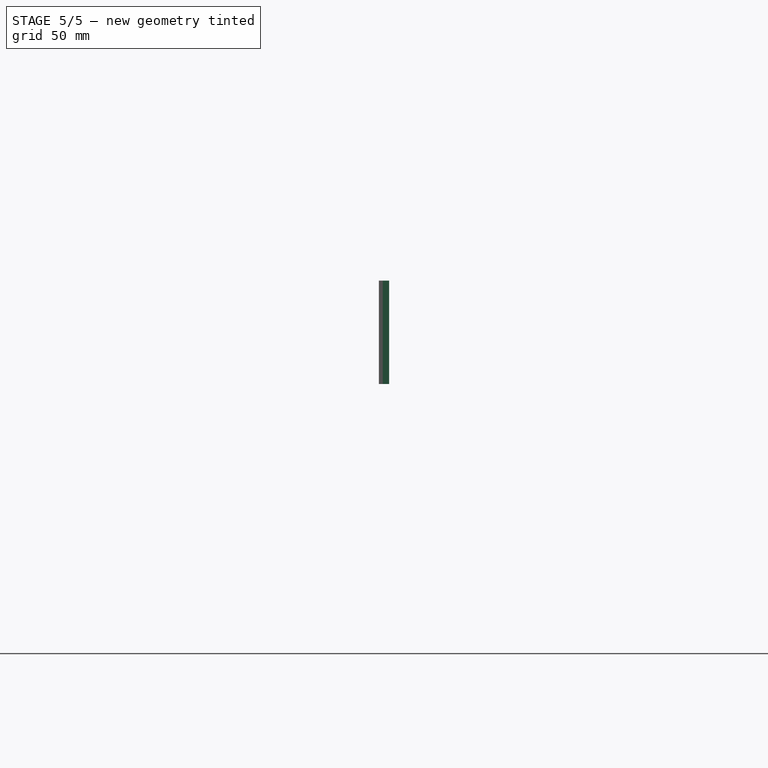
[diagram: stage 5 of 5 — right view after this stage's code; geometry added in this stage tinted green]
FEATURE [Sketcher::SketchObject] Sketch008
  FullyConstrained = true
  MapMode = 5
  Placement = pos=(0,0,0) rot=(1,0,0;1.5708rad)
  Support = -> [XZ_Plane001]
  sketch-geometry (4):
    g0: LineSegment StartX=-200 StartY=-200 StartZ=0 EndX=200 EndY=-200 EndZ=0
    g1: LineSegment StartX=200 StartY=-200 StartZ=0 EndX=200 EndY=200 EndZ=0
    g2: LineSegment StartX=200 StartY=200 StartZ=0 EndX=-200 EndY=200 EndZ=0
    g3: LineSegment StartX=-200 StartY=200 StartZ=0 EndX=-200 EndY=-200 EndZ=0
  constraints (10):
    c: Coincident(g0,g1)
    c: Coincident(g1,g2)
    c: Coincident(g2,g3)
    c: Coincident(g3,g0)
    c: Horizontal(g2)
    c: Vertical(g1)
    c: Symmetric(g0,g0,g-2)
    c: Symmetric(g0,g2,g-1)
    c: Equal(g0,g3)
    c: DistanceY(g0,g2) = 400
FEATURE [PartDesign::Pad] Pad001
  Direction = (0,-1,2e-16)
  Length = 0.01
  Length2 = 10
  Placement = pos=(0,0,0) rot=(1,0,0;1.5708rad)
  Profile = -> Sketch008
  ReferenceAxis = -> Sketch008 [N_Axis]
  Type = 0
FEATURE [PartDesign::SubShapeBinder] Binder
  BindCopyOnChange = 0
  BindMode = 0
  ClaimChildren = false
  Context = -> Body002 [Binder.]
  Fuse = false
  MakeFace = true
  OffsetFill = false
  OffsetIntersection = false
  OffsetJoinType = 0
  OffsetOpenResult = false
  PartialLoad = false
  Relative = true
  Support = -> [Body[Hole003.Face14,Hole003.Face18]]
  _Version = 2
FEATURE [Sketcher::SketchObject] Sketch010
  ExternalGeometry = -> [Binder]
  FullyConstrained = true
  MapMode = 5
  Placement = pos=(0,0,0) rot=(1,0,0;1.5708rad)
  Support = -> [XZ_Plane002]
  sketch-geometry (4):
    g0: LineSegment StartX=-46 StartY=0 StartZ=0 EndX=46 EndY=0 EndZ=0
    g1: LineSegment StartX=46 StartY=0 StartZ=0 EndX=46 EndY=80 EndZ=0
    g2: LineSegment StartX=46 StartY=80 StartZ=0 EndX=-46 EndY=80 EndZ=0
    g3: LineSegment StartX=-46 StartY=80 StartZ=0 EndX=-46 EndY=0 EndZ=0
  constraints (12):
    c: Coincident(g0,g1)
    c: Coincident(g1,g2)
    c: Coincident(g2,g3)
    c: Coincident(g3,g0)
    c: Horizontal(g0)
    c: Horizontal(g2)
    c: Vertical(g1)
    c: Vertical(g3)
    c: PointOnObject(g0,g-1)
    c: PointOnObject(g1,g-4)
    c: PointOnObject(g-5,g1)
    c: PointOnObject(g-6,g3)
FEATURE [PartDesign::Pad] Pad002  label="Deckelplatte"
  Direction = (0,-1,-2e-16)
  Length = 5
  Length2 = 10
  Placement = pos=(0,0,0) rot=(1,0,0;1.5708rad)
  Profile = -> Sketch010
  ReferenceAxis = -> Sketch010 [N_Axis]
  Reversed = true
  Type = 0
FEATURE [Sketcher::SketchObject] Sketch012  label="DeckelSchrauben"
  ExternalGeometry = -> [Binder]
  FullyConstrained = true
  MapMode = 5
  Placement = pos=(0,5,-1e-15) rot=(-1,0,0;1.5708rad)
  sketch-geometry (4):
    g0: Circle CenterX=-36.6667 CenterY=-58.6667 CenterZ=0 NormalX=0 NormalY=0 NormalZ=1 AngleXU=0 Radius=1
    g1: Circle CenterX=-36.6667 CenterY=-21.3333 CenterZ=0 NormalX=0 NormalY=0 NormalZ=1 AngleXU=0 Radius=1
    g2: Circle CenterX=36.6667 CenterY=-21.3333 CenterZ=0 NormalX=0 NormalY=0 NormalZ=1 AngleXU=0 Radius=1
    g3: Circle CenterX=36.6667 CenterY=-58.6667 CenterZ=0 NormalX=0 NormalY=0 NormalZ=1 AngleXU=0 Radius=1
  constraints (8):
    c: Coincident(g0,g-4)
    c: Equal(g-4,g0)
    c: Coincident(g1,g-3)
    c: Coincident(g2,g-6)
    c: Coincident(g3,g-5)
    c: Equal(g0,g1)
    c: Equal(g1,g2)
    c: Equal(g2,g3)
FEATURE [PartDesign::Hole] Hole004  label="Deckelschrauben"
  BaseFeature = -> Pad002
  CustomThreadClearance = 0
  Depth = 25
  DepthType = 0
  Diameter = 3
  DrillForDepth = false
  DrillPoint = 1
  DrillPointAngle = 118
  HoleCutCountersinkAngle = 90
  HoleCutCustomValues = false
  HoleCutDepth = 0
  HoleCutDiameter = 8
  HoleCutType = 2
  ModelThread = false
  Placement = pos=(0,0,0) rot=(1,0,0;1.5708rad)
  Profile = -> Sketch012
  Tapered = false
  TaperedAngle = 90
  ThreadClass = 0
  ThreadDepth = 25
  ThreadDepthType = 0
  ThreadDirection = 0
  ThreadFit = 0
  ThreadSize = 0
  ThreadType = 0
  Threaded = false
  UseCustomThreadClearance = false
FEATURE [PartDesign::Hole] Hole007  label="Schraubensenke"
  BaseFeature = -> Pad003
  CustomThreadClearance = 0
  Depth = 25
  DepthType = 0
  Diameter = 4
  DrillForDepth = true
  DrillPoint = 1
  DrillPointAngle = 118
  HoleCutCountersinkAngle = 90
  HoleCutCustomValues = false
  HoleCutDepth = 0
  HoleCutDiameter = 8
  HoleCutType = 2
  ModelThread = false
  Profile = -> Pad003 [Edge18,Edge21,Edge24,Edge15]
  Reversed = true
  Tapered = false
  TaperedAngle = 90
  ThreadClass = 0
  ThreadDepth = 25
  ThreadDepthType = 0
  ThreadDirection = 0
  ThreadFit = 0
  ThreadSize = 0
  ThreadType = 0
  Threaded = false
  UseCustomThreadClearance = false
FEATURE [PartDesign::Body] Body003  label="Bodendeckel"
  Group = -> [Binder001,Sketch015,Pad003,Hole007]
  Origin = -> Origin003
  Tip = -> Hole007
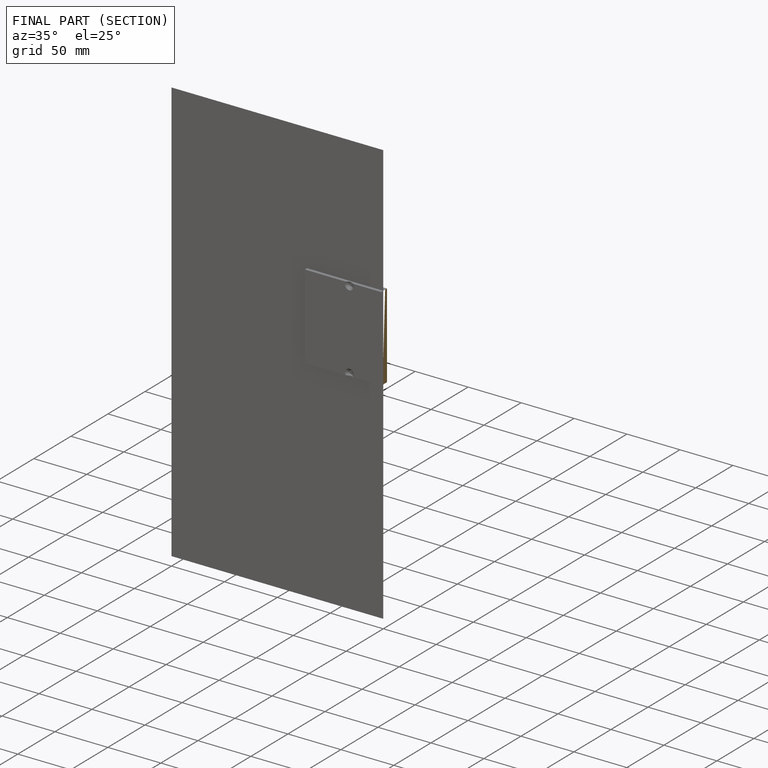
[diagram: finished part — half-section view (interior)]
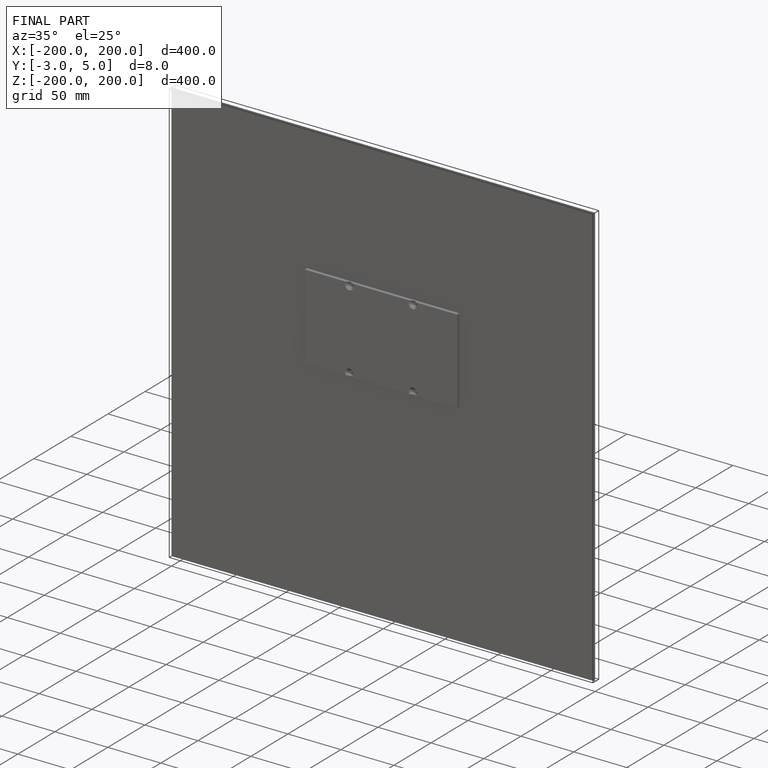
[diagram: finished part — iso view with bounding-box wireframe]
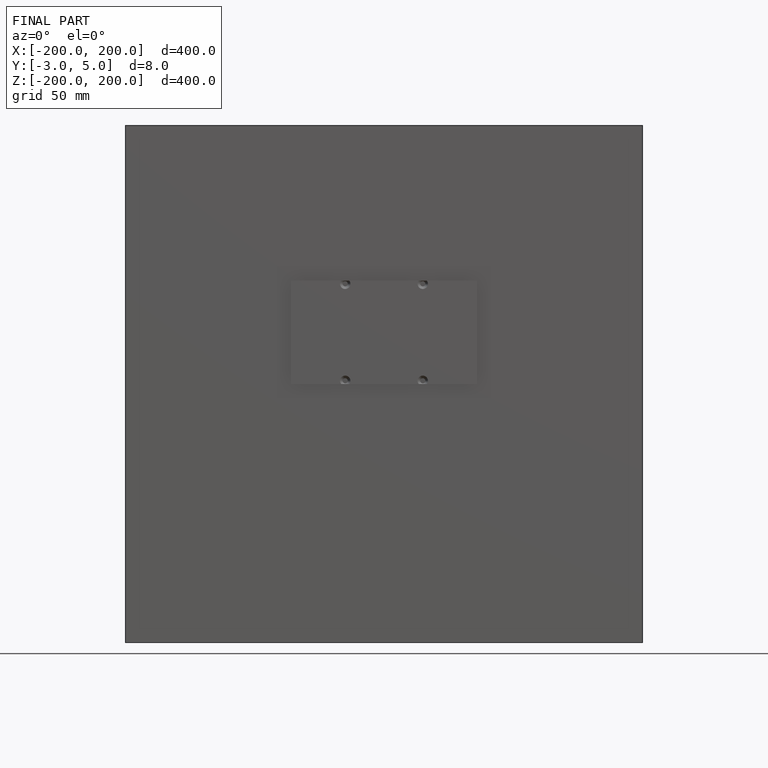
[diagram: finished part — front view with bounding-box wireframe]
